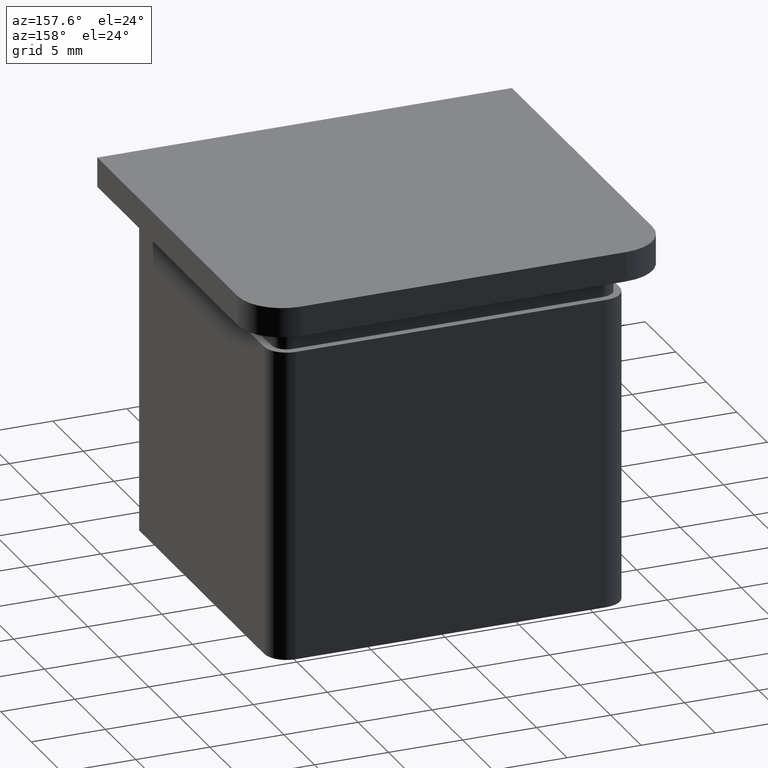
[diagram: clean part render]
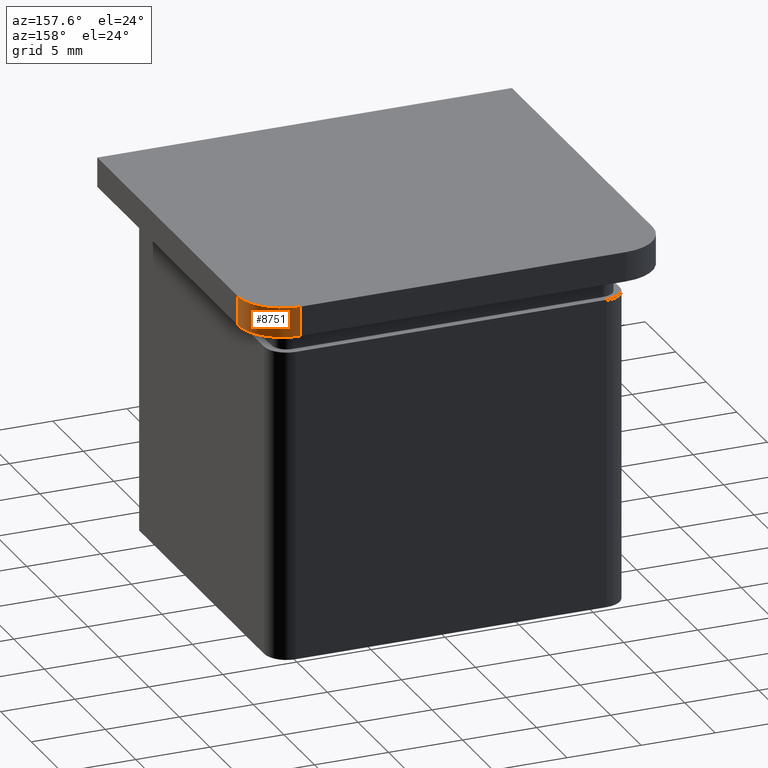
[diagram: same view with one face highlighted and labeled with its STEP entity id]
A machine part, auxiliary view. The second image highlights one B-rep face of the part: STEP entity #8751.
In plain terms, the highlighted cylindrical surface (partial cylindrical patch) has radius 3 mm, axis along (0, 0, -1).
Its self-contained STEP definition (entity closure, byte-faithful):
#727 = DIRECTION ( 'NONE',  ( 1.000000000000000000, 0.000000000000000000, 0.000000000000000000 ) ) ;
#1052 = LINE ( 'NONE', #12940, #7078 ) ;
#1126 = AXIS2_PLACEMENT_3D ( 'NONE', #14212, #7411, #7473 ) ;
#1134 = FACE_OUTER_BOUND ( 'NONE', #11578, .T. ) ;
#1512 = ORIENTED_EDGE ( 'NONE', *, *, #7745, .F. ) ;
#1690 = AXIS2_PLACEMENT_3D ( 'NONE', #10952, #4361, #13928 ) ;
#1912 = CARTESIAN_POINT ( 'NONE',  ( 13.99999999999999467, 9.999999999999998224, 2.000000000000000000 ) ) ;
#2162 = DIRECTION ( 'NONE',  ( -0.000000000000000000, 0.000000000000000000, 1.000000000000000000 ) ) ;
#2966 = AXIS2_PLACEMENT_3D ( 'NONE', #17141, #2162, #727 ) ;
#3319 = CIRCLE ( 'NONE', #1126, 2.999999999999999112 ) ;
#3926 = CYLINDRICAL_SURFACE ( 'NONE', #1690, 2.999999999999999112 ) ;
#4361 = DIRECTION ( 'NONE',  ( 0.000000000000000000, 0.000000000000000000, -1.000000000000000000 ) ) ;
#5550 = ORIENTED_EDGE ( 'NONE', *, *, #14368, .F. ) ;
#7078 = VECTOR ( 'NONE', #10121, 1000.000000000000000 ) ;
#7411 = DIRECTION ( 'NONE',  ( 0.000000000000000000, -0.000000000000000000, -1.000000000000000000 ) ) ;
#7473 = DIRECTION ( 'NONE',  ( 1.000000000000000000, -1.156482317317871725E-15, 0.000000000000000000 ) ) ;
#7745 = EDGE_CURVE ( 'NONE', #8335, #10519, #3319, .T. ) ;
#8104 = CARTESIAN_POINT ( 'NONE',  ( 13.99999999999999467, 9.999999999999998224, 0.000000000000000000 ) ) ;
#8250 = EDGE_CURVE ( 'NONE', #8461, #10366, #9715, .T. ) ;
#8335 = VERTEX_POINT ( 'NONE', #13058 ) ;
#8461 = VERTEX_POINT ( 'NONE', #1912 ) ;
#8751 = ADVANCED_FACE ( 'NONE', ( #1134 ), #3926, .T. ) ;
#9158 = DIRECTION ( 'NONE',  ( 0.000000000000000000, 0.000000000000000000, -1.000000000000000000 ) ) ;
#9282 = ORIENTED_EDGE ( 'NONE', *, *, #8250, .F. ) ;
#9437 = CARTESIAN_POINT ( 'NONE',  ( 10.99999999999998934, 13.00000000000000000, 2.000000000000000000 ) ) ;
#9715 = CIRCLE ( 'NONE', #2966, 2.999999999999999112 ) ;
#10121 = DIRECTION ( 'NONE',  ( -0.000000000000000000, -0.000000000000000000, 1.000000000000000000 ) ) ;
#10366 = VERTEX_POINT ( 'NONE', #9437 ) ;
#10519 = VERTEX_POINT ( 'NONE', #8104 ) ;
#10952 = CARTESIAN_POINT ( 'NONE',  ( 10.99999999999999645, 9.999999999999998224, 2.000000000000000000 ) ) ;
#11578 = EDGE_LOOP ( 'NONE', ( #9282, #5550, #1512, #17563 ) ) ;
#12613 = LINE ( 'NONE', #17254, #15175 ) ;
#12940 = CARTESIAN_POINT ( 'NONE',  ( 13.99999999999999467, 9.999999999999998224, 2.000000000000000000 ) ) ;
#13058 = CARTESIAN_POINT ( 'NONE',  ( 10.99999999999998934, 13.00000000000000000, 0.000000000000000000 ) ) ;
#13928 = DIRECTION ( 'NONE',  ( -1.000000000000000000, 0.000000000000000000, 0.000000000000000000 ) ) ;
#14212 = CARTESIAN_POINT ( 'NONE',  ( 10.99999999999999645, 9.999999999999998224, 0.000000000000000000 ) ) ;
#14368 = EDGE_CURVE ( 'NONE', #10519, #8461, #1052, .T. ) ;
#14544 = EDGE_CURVE ( 'NONE', #10366, #8335, #12613, .T. ) ;
#15175 = VECTOR ( 'NONE', #9158, 1000.000000000000000 ) ;
#17141 = CARTESIAN_POINT ( 'NONE',  ( 10.99999999999999645, 9.999999999999998224, 2.000000000000000000 ) ) ;
#17254 = CARTESIAN_POINT ( 'NONE',  ( 10.99999999999999645, 13.00000000000000000, 2.000000000000000000 ) ) ;
#17563 = ORIENTED_EDGE ( 'NONE', *, *, #14544, .F. ) ;